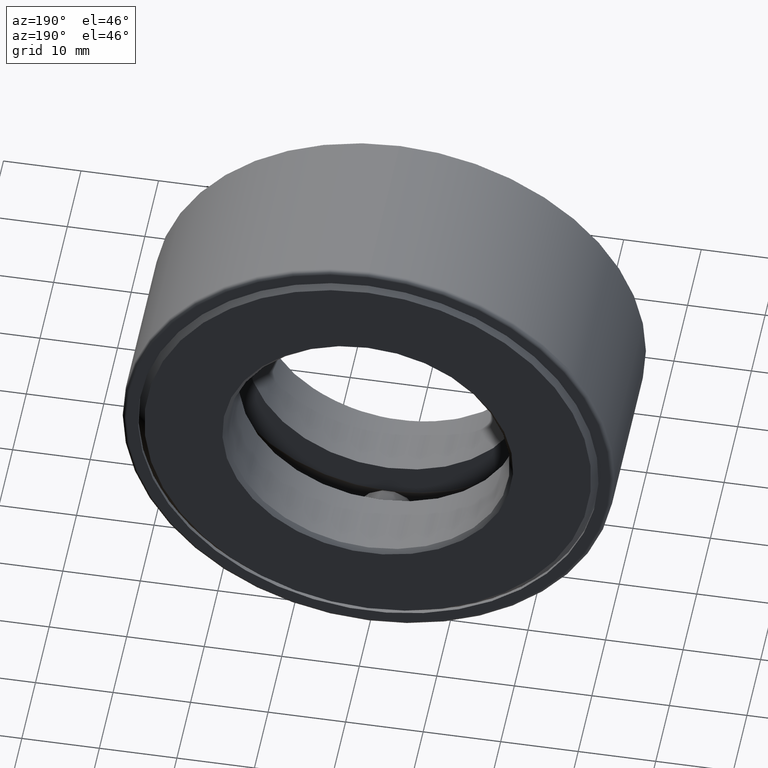
[diagram: clean part render]
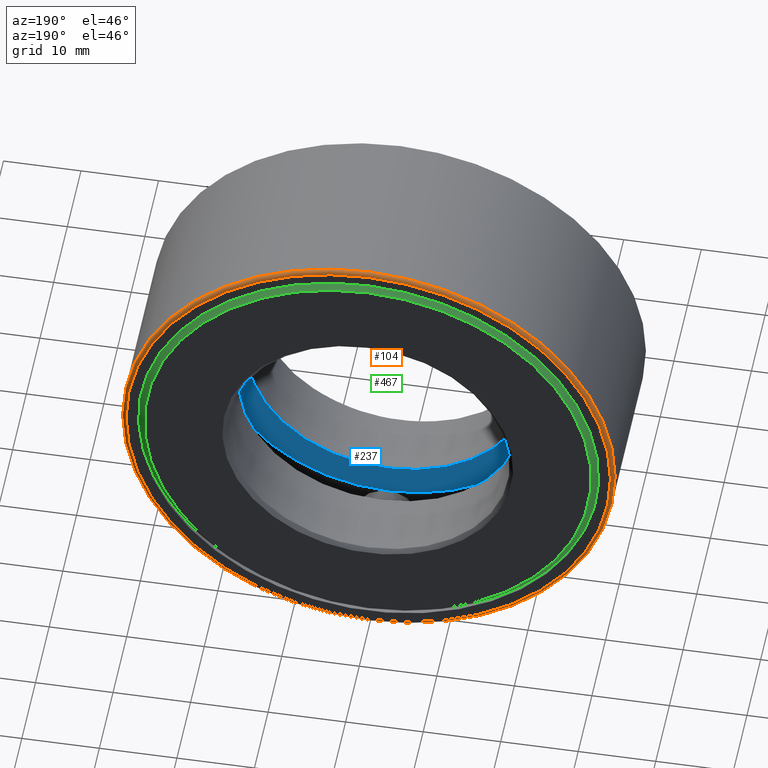
[diagram: same view with three faces highlighted in distinct colors, each labeled with its STEP entity id]
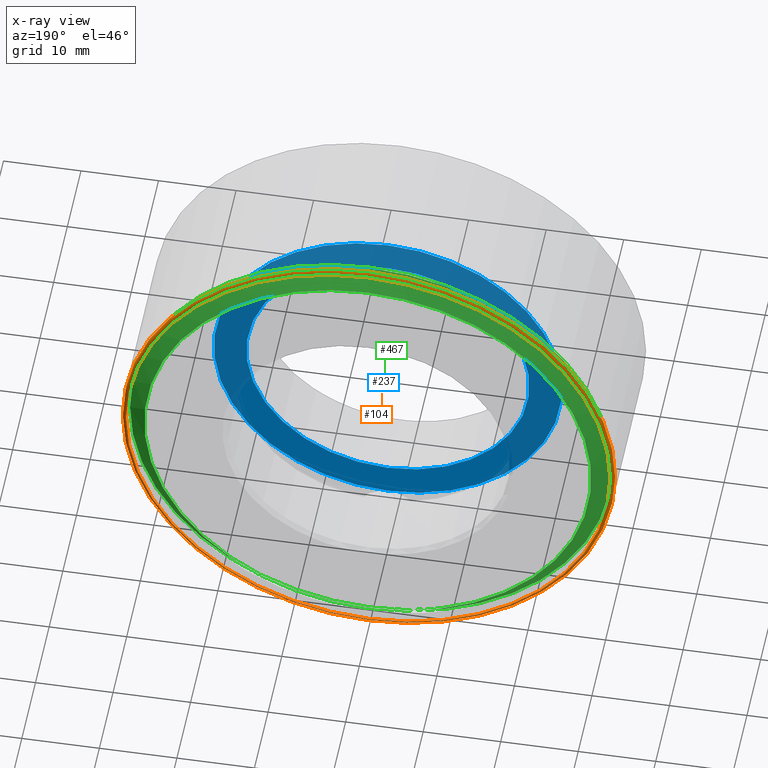
[diagram: x-ray of the same camera — body ghosted, the three highlighted faces saturated]
A machine part, auxiliary view with three faces highlighted in distinct colors.
The next image is the same camera in x-ray (body ghosted, the three faces saturated) — at least one of them is partly hidden behind the body in this view.
Their STEP definitions:

[orange] entity #104 — the highlighted toroidal blend (fillet) surface has major radius 31.242 mm and minor (blend) radius 0.508 mm.
#9 = DIRECTION ( 'NONE',  ( 0.0000000000000000000, 0.0000000000000000000, 1.000000000000000000 ) ) ;
#24 = CARTESIAN_POINT ( 'NONE',  ( 0.0000000000000000000, 0.9024999999999998600, 1.250000000000000000 ) ) ;
#53 = EDGE_CURVE ( 'NONE', #125, #125, #255, .T. ) ;
#104 = ADVANCED_FACE ( 'NONE', ( #516, #440 ), #310, .T. ) ;
#125 = VERTEX_POINT ( 'NONE', #573 ) ;
#157 = AXIS2_PLACEMENT_3D ( 'NONE', #282, #194, #9 ) ;
#172 = DIRECTION ( 'NONE',  ( -0.0000000000000000000, 1.000000000000000000, -0.0000000000000000000 ) ) ;
#194 = DIRECTION ( 'NONE',  ( -0.0000000000000000000, 1.000000000000000000, -0.0000000000000000000 ) ) ;
#255 = CIRCLE ( 'NONE', #274, 1.230000000000000000 ) ;
#269 = ORIENTED_EDGE ( 'NONE', *, *, #53, .F. ) ;
#274 = AXIS2_PLACEMENT_3D ( 'NONE', #538, #405, #353 ) ;
#282 = CARTESIAN_POINT ( 'NONE',  ( 0.0000000000000000000, 0.9024999999999998600, 0.0000000000000000000 ) ) ;
#303 = EDGE_LOOP ( 'NONE', ( #269 ) ) ;
#310 = TOROIDAL_SURFACE ( 'NONE', #592, 1.230000000000000000, 0.02000000000000005900 ) ;
#350 = ORIENTED_EDGE ( 'NONE', *, *, #528, .T. ) ;
#353 = DIRECTION ( 'NONE',  ( 0.0000000000000000000, 0.0000000000000000000, 1.000000000000000000 ) ) ;
#405 = DIRECTION ( 'NONE',  ( -0.0000000000000000000, 1.000000000000000000, -0.0000000000000000000 ) ) ;
#440 = FACE_OUTER_BOUND ( 'NONE', #449, .T. ) ;
#449 = EDGE_LOOP ( 'NONE', ( #350 ) ) ;
#494 = VERTEX_POINT ( 'NONE', #24 ) ;
#516 = FACE_OUTER_BOUND ( 'NONE', #303, .T. ) ;
#528 = EDGE_CURVE ( 'NONE', #494, #494, #566, .T. ) ;
#538 = CARTESIAN_POINT ( 'NONE',  ( 0.0000000000000000000, 0.9224999999999998800, 0.0000000000000000000 ) ) ;
#566 = CIRCLE ( 'NONE', #157, 1.250000000000000000 ) ;
#573 = CARTESIAN_POINT ( 'NONE',  ( 0.0000000000000000000, 0.9224999999999998800, 1.230000000000000000 ) ) ;
#577 = CARTESIAN_POINT ( 'NONE',  ( 0.0000000000000000000, 0.9024999999999998600, 0.0000000000000000000 ) ) ;
#592 = AXIS2_PLACEMENT_3D ( 'NONE', #577, #172, #599 ) ;
#599 = DIRECTION ( 'NONE',  ( 0.0000000000000000000, 0.0000000000000000000, 1.000000000000000000 ) ) ;

[blue] entity #237 — the highlighted planar face has unit normal (0, -1, 0).
#33 = CARTESIAN_POINT ( 'NONE',  ( 0.0000000000000000000, 0.3562500000000000700, 0.0000000000000000000 ) ) ;
#37 = CARTESIAN_POINT ( 'NONE',  ( 0.0000000000000000000, 0.3562500000000000700, 0.0000000000000000000 ) ) ;
#45 = CARTESIAN_POINT ( 'NONE',  ( 0.0000000000000000000, 0.3562500000000000700, 0.0000000000000000000 ) ) ;
#82 = PLANE ( 'NONE',  #215 ) ;
#84 = DIRECTION ( 'NONE',  ( 0.0000000000000000000, -1.000000000000000000, 0.0000000000000000000 ) ) ;
#87 = EDGE_CURVE ( 'NONE', #130, #130, #183, .T. ) ;
#114 = EDGE_LOOP ( 'NONE', ( #478 ) ) ;
#130 = VERTEX_POINT ( 'NONE', #441 ) ;
#173 = DIRECTION ( 'NONE',  ( -0.0000000000000000000, 1.000000000000000000, -0.0000000000000000000 ) ) ;
#183 = CIRCLE ( 'NONE', #550, 0.7187500000000000000 ) ;
#215 = AXIS2_PLACEMENT_3D ( 'NONE', #37, #84, #591 ) ;
#235 = EDGE_CURVE ( 'NONE', #407, #407, #598, .T. ) ;
#237 = ADVANCED_FACE ( 'NONE', ( #503, #551 ), #82, .F. ) ;
#277 = EDGE_LOOP ( 'NONE', ( #603 ) ) ;
#314 = DIRECTION ( 'NONE',  ( -0.0000000000000000000, 1.000000000000000000, -0.0000000000000000000 ) ) ;
#354 = AXIS2_PLACEMENT_3D ( 'NONE', #33, #314, #358 ) ;
#358 = DIRECTION ( 'NONE',  ( 0.0000000000000000000, 0.0000000000000000000, 1.000000000000000000 ) ) ;
#407 = VERTEX_POINT ( 'NONE', #523 ) ;
#441 = CARTESIAN_POINT ( 'NONE',  ( 0.0000000000000000000, 0.3562500000000000700, 0.7187500000000000000 ) ) ;
#478 = ORIENTED_EDGE ( 'NONE', *, *, #235, .T. ) ;
#503 = FACE_BOUND ( 'NONE', #277, .T. ) ;
#523 = CARTESIAN_POINT ( 'NONE',  ( 0.0000000000000000000, 0.3562500000000000700, 0.8835000000000000600 ) ) ;
#548 = DIRECTION ( 'NONE',  ( 0.0000000000000000000, 0.0000000000000000000, 1.000000000000000000 ) ) ;
#550 = AXIS2_PLACEMENT_3D ( 'NONE', #45, #173, #548 ) ;
#551 = FACE_OUTER_BOUND ( 'NONE', #114, .T. ) ;
#591 = DIRECTION ( 'NONE',  ( 0.0000000000000000000, -0.0000000000000000000, -1.000000000000000000 ) ) ;
#598 = CIRCLE ( 'NONE', #354, 0.8835000000000000600 ) ;
#603 = ORIENTED_EDGE ( 'NONE', *, *, #87, .F. ) ;

[green] entity #467 — the highlighted conical surface has half-angle 45 deg.
#18 = AXIS2_PLACEMENT_3D ( 'NONE', #133, #49, #500 ) ;
#46 = AXIS2_PLACEMENT_3D ( 'NONE', #520, #62, #285 ) ;
#49 = DIRECTION ( 'NONE',  ( -0.0000000000000000000, 1.000000000000000000, -0.0000000000000000000 ) ) ;
#62 = DIRECTION ( 'NONE',  ( 0.0000000000000000000, -1.000000000000000000, 0.0000000000000000000 ) ) ;
#94 = EDGE_LOOP ( 'NONE', ( #460 ) ) ;
#116 = CARTESIAN_POINT ( 'NONE',  ( 0.0000000000000000000, 0.9375000000000000000, 1.134999999999999800 ) ) ;
#122 = FACE_BOUND ( 'NONE', #94, .T. ) ;
#133 = CARTESIAN_POINT ( 'NONE',  ( 0.0000000000000000000, 0.9375000000000000000, 0.0000000000000000000 ) ) ;
#165 = CIRCLE ( 'NONE', #429, 1.222999999999999900 ) ;
#170 = CONICAL_SURFACE ( 'NONE', #46, 1.134999999999999800, 0.7853981633974490600 ) ;
#193 = ORIENTED_EDGE ( 'NONE', *, *, #290, .T. ) ;
#223 = CARTESIAN_POINT ( 'NONE',  ( 0.0000000000000000000, 0.8495000000000000300, 0.0000000000000000000 ) ) ;
#241 = EDGE_LOOP ( 'NONE', ( #193 ) ) ;
#268 = DIRECTION ( 'NONE',  ( 0.0000000000000000000, 0.0000000000000000000, 1.000000000000000000 ) ) ;
#285 = DIRECTION ( 'NONE',  ( 0.0000000000000000000, 0.0000000000000000000, -1.000000000000000000 ) ) ;
#290 = EDGE_CURVE ( 'NONE', #359, #359, #165, .T. ) ;
#315 = VERTEX_POINT ( 'NONE', #116 ) ;
#359 = VERTEX_POINT ( 'NONE', #581 ) ;
#368 = EDGE_CURVE ( 'NONE', #315, #315, #491, .T. ) ;
#417 = DIRECTION ( 'NONE',  ( -0.0000000000000000000, 1.000000000000000000, -0.0000000000000000000 ) ) ;
#429 = AXIS2_PLACEMENT_3D ( 'NONE', #223, #417, #268 ) ;
#460 = ORIENTED_EDGE ( 'NONE', *, *, #368, .F. ) ;
#467 = ADVANCED_FACE ( 'NONE', ( #496, #122 ), #170, .T. ) ;
#491 = CIRCLE ( 'NONE', #18, 1.134999999999999800 ) ;
#496 = FACE_OUTER_BOUND ( 'NONE', #241, .T. ) ;
#500 = DIRECTION ( 'NONE',  ( 0.0000000000000000000, 0.0000000000000000000, 1.000000000000000000 ) ) ;
#520 = CARTESIAN_POINT ( 'NONE',  ( 0.0000000000000000000, 0.9375000000000000000, 0.0000000000000000000 ) ) ;
#581 = CARTESIAN_POINT ( 'NONE',  ( 0.0000000000000000000, 0.8495000000000000300, 1.222999999999999900 ) ) ;